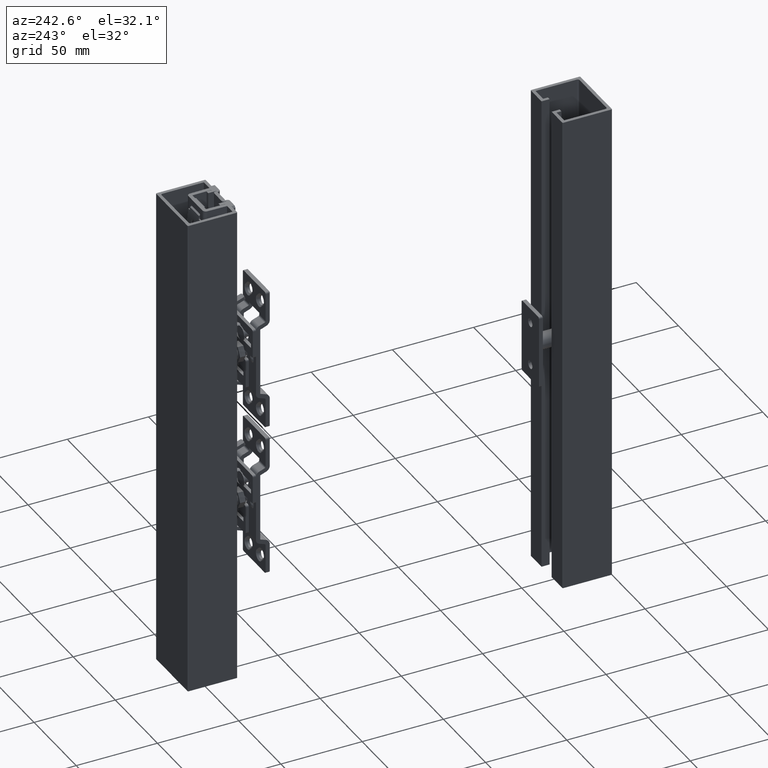
[diagram: clean part render]
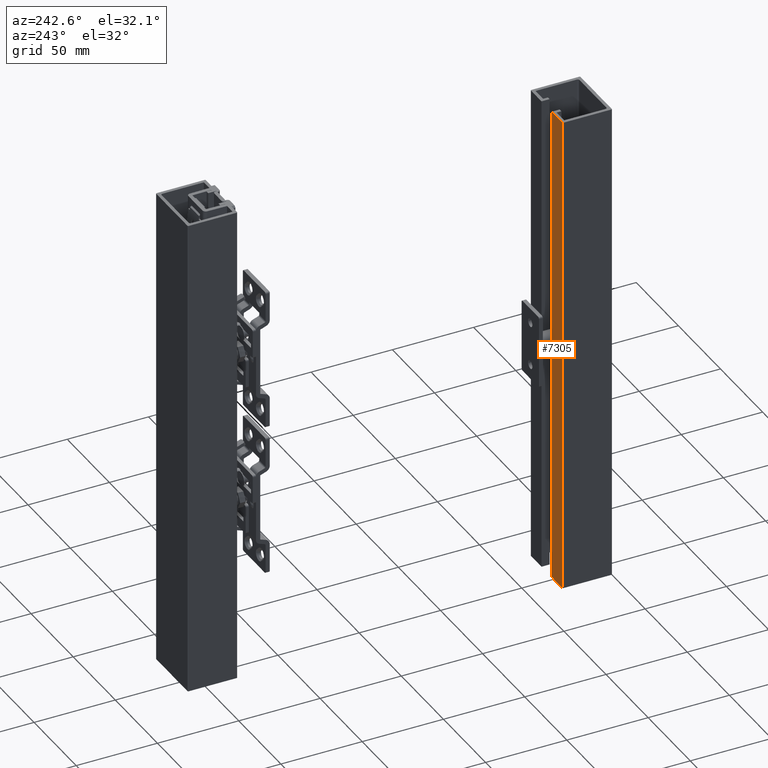
[diagram: same view with one face highlighted and labeled with its STEP entity id]
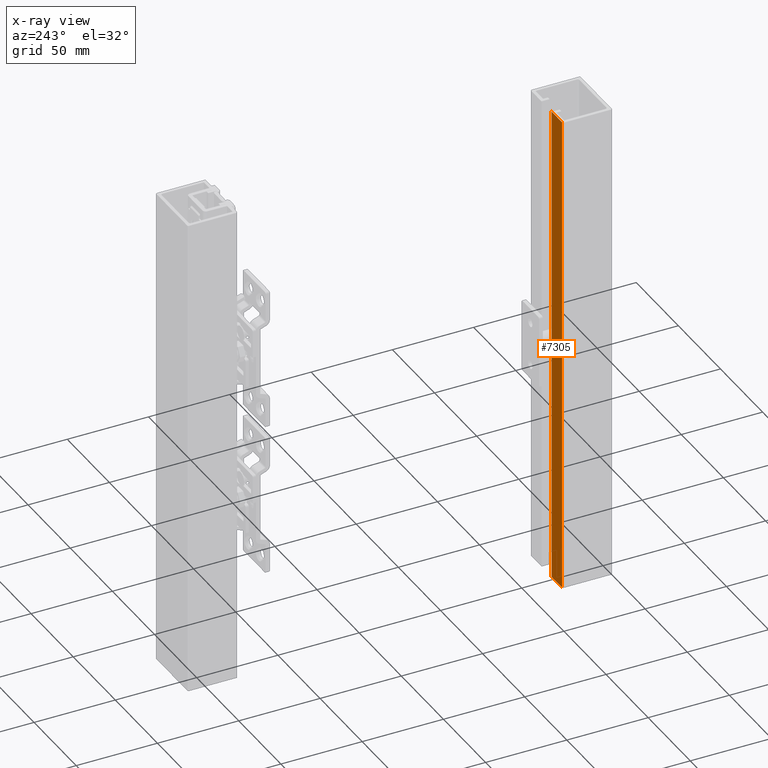
[diagram: x-ray of the same camera — body ghosted, the highlighted face saturated]
A machine part, auxiliary view. The second image highlights one B-rep face of the part: STEP entity #7305.
The next image is the same camera in x-ray: the body ghosted, the highlighted face saturated — about 0% of this face is hidden behind the body in this view.
In plain terms, the highlighted planar face has unit normal (-0, 1, -0).
Its self-contained STEP definition (entity closure, byte-faithful):
#291=PLANE('',#7772);
#545=FACE_OUTER_BOUND('',#986,.T.);
#986=EDGE_LOOP('',(#5090,#5091,#5092,#5093));
#1580=LINE('',#10922,#2267);
#1583=LINE('',#10934,#2270);
#1585=LINE('',#10940,#2272);
#1586=LINE('',#10941,#2273);
#2267=VECTOR('',#8611,12.5);
#2270=VECTOR('',#8622,300.);
#2272=VECTOR('',#8628,300.);
#2273=VECTOR('',#8629,12.5);
#3284=VERTEX_POINT('',#10919);
#3285=VERTEX_POINT('',#10921);
#3290=VERTEX_POINT('',#10933);
#3292=VERTEX_POINT('',#10939);
#4020=EDGE_CURVE('',#3284,#3285,#1580,.T.);
#4026=EDGE_CURVE('',#3285,#3290,#1583,.T.);
#4029=EDGE_CURVE('',#3284,#3292,#1585,.T.);
#4030=EDGE_CURVE('',#3290,#3292,#1586,.T.);
#5090=ORIENTED_EDGE('',*,*,#4026,.F.);
#5091=ORIENTED_EDGE('',*,*,#4020,.F.);
#5092=ORIENTED_EDGE('',*,*,#4029,.T.);
#5093=ORIENTED_EDGE('',*,*,#4030,.F.);
#7305=ADVANCED_FACE('',(#545),#291,.T.);
#7772=AXIS2_PLACEMENT_3D('',#10938,#8626,#8627);
#8611=DIRECTION('',(-1.,1.19562479575017E-15,0.));
#8622=DIRECTION('',(0.,0.,1.));
#8626=DIRECTION('center_axis',(-1.19562479575017E-15,-1.,0.));
#8627=DIRECTION('ref_axis',(1.,-1.24344978758018E-15,0.));
#8628=DIRECTION('',(0.,0.,1.));
#8629=DIRECTION('',(1.,-1.19562479575017E-15,0.));
#10919=CARTESIAN_POINT('',(-5.99999999999998,-15.25,-150.));
#10921=CARTESIAN_POINT('',(-18.5,-15.25,-150.));
#10922=CARTESIAN_POINT('',(-19.,-15.25,-150.));
#10933=CARTESIAN_POINT('',(-18.5,-15.25,150.));
#10934=CARTESIAN_POINT('',(-18.5,-15.25,0.));
#10938=CARTESIAN_POINT('Origin',(-19.,-15.25,0.));
#10939=CARTESIAN_POINT('',(-5.99999999999998,-15.25,150.));
#10940=CARTESIAN_POINT('',(-5.99999999999998,-15.25,0.));
#10941=CARTESIAN_POINT('',(-19.,-15.25,150.));